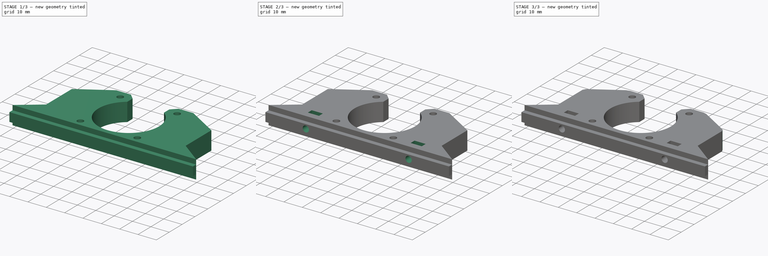
[diagram: build sequence overview — one tinted view per stage of 3, left to right]
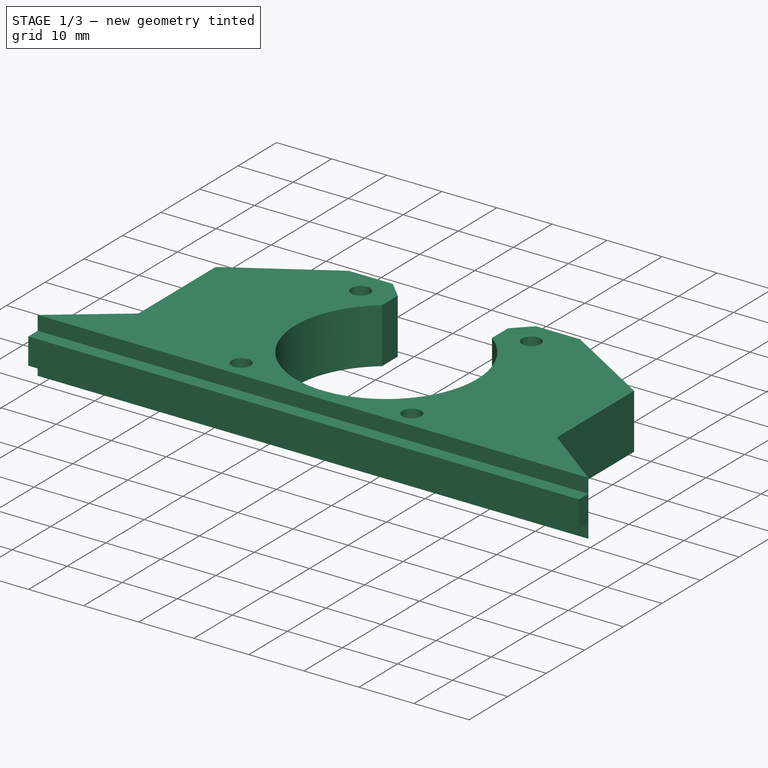
[diagram: stage 1 of 3 — iso view after this stage's code; geometry added in this stage tinted green]
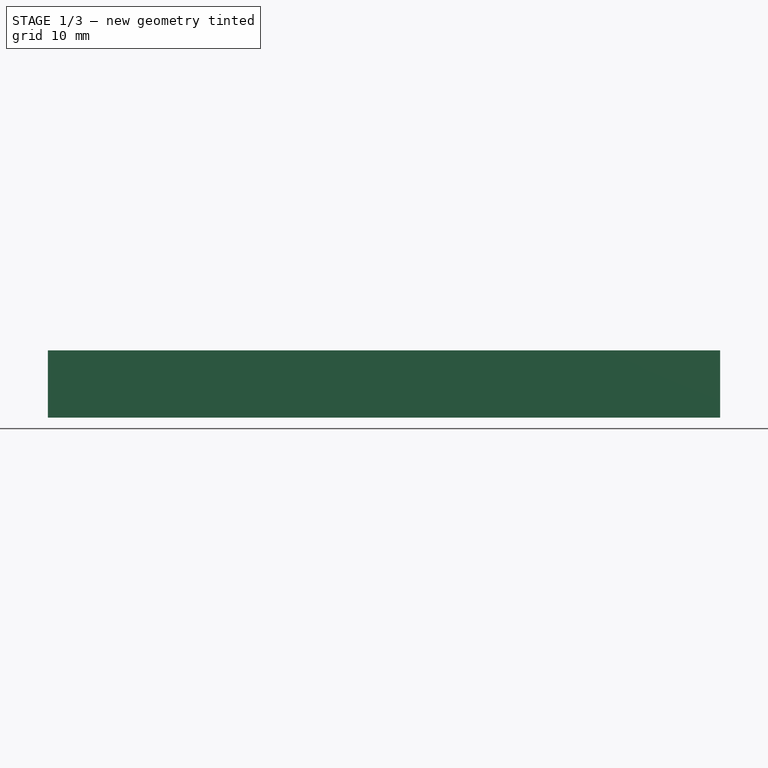
[diagram: stage 1 of 3 — front view after this stage's code; geometry added in this stage tinted green]
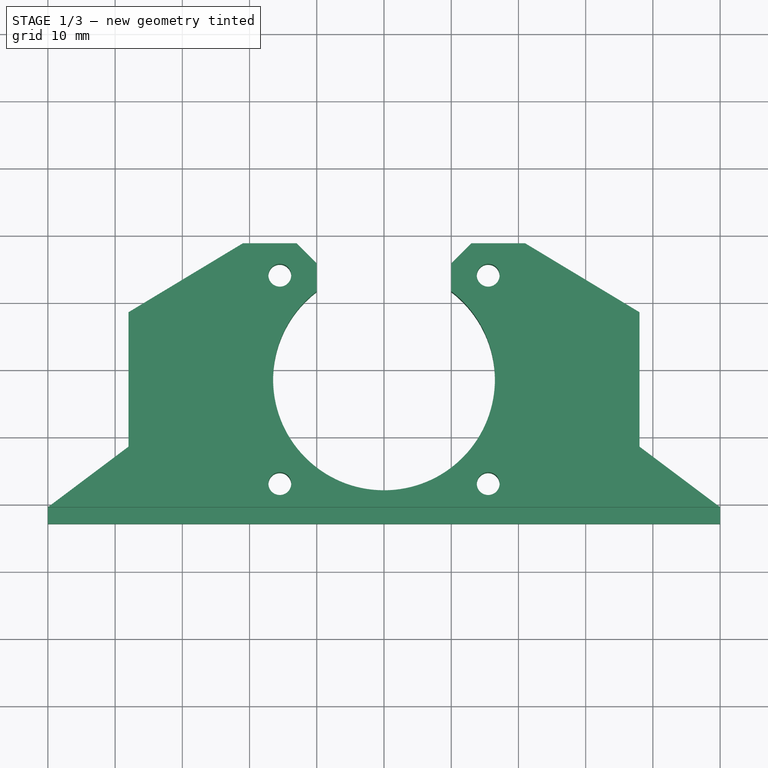
[diagram: stage 1 of 3 — top view after this stage's code; geometry added in this stage tinted green]
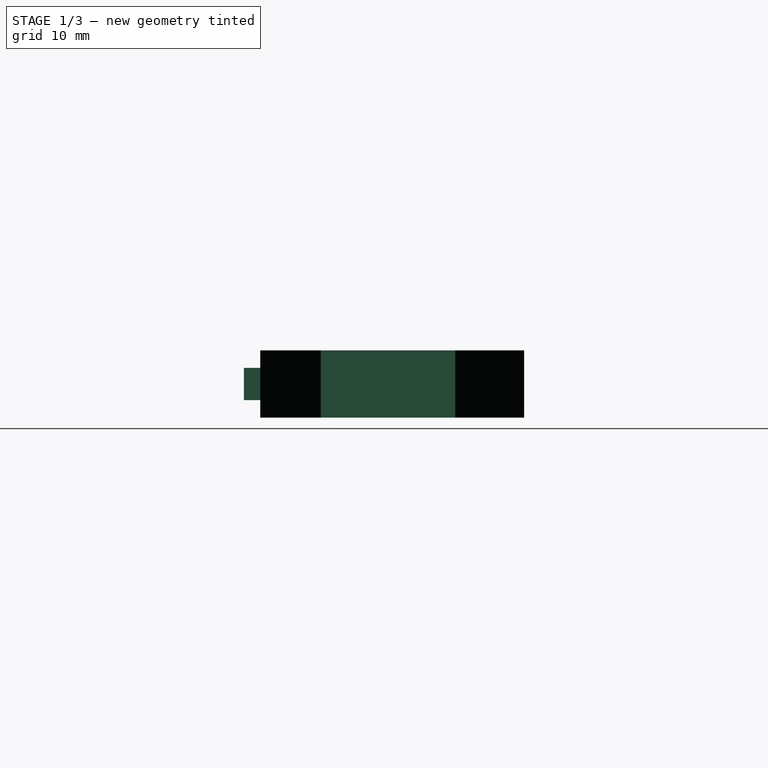
[diagram: stage 1 of 3 — right view after this stage's code; geometry added in this stage tinted green]
FCSTD DOCUMENT  (FreeCAD 0.18R)
Label: x-carriage-top-mount
License: All rights reserved
LicenseURL: http://en.wikipedia.org/wiki/All_rights_reserved
objects: Sketcher::SketchObject×5, PartDesign::Pocket×3, PartDesign::Pad×2, PartDesign::Fillet×1, PartDesign::Chamfer×1, PartDesign::Body×1
note: 18 computed .brp shape members not serialized (recipe doc carries the construction recipe); baked Part::Feature solids carry a one-line shape summary decoded from their .brp

FEATURE [Sketcher::SketchObject] Sketch020
  MapMode = 5
  Support = -> [XY_Plane001]
  sketch-geometry (7):
    g0: Circle CenterX=25 CenterY=28.5 CenterZ=0 NormalX=0 NormalY=0 NormalZ=1 AngleXU=0 Radius=4.05
    g1: Circle CenterX=75 CenterY=28.5 CenterZ=0 NormalX=0 NormalY=0 NormalZ=1 AngleXU=0 Radius=4.05
    g2: Circle CenterX=34.5 CenterY=44 CenterZ=0 NormalX=0 NormalY=0 NormalZ=1 AngleXU=0 Radius=3
    g3: Circle CenterX=65.5 CenterY=44 CenterZ=0 NormalX=0 NormalY=0 NormalZ=1 AngleXU=0 Radius=3
    g4: Circle CenterX=65.5 CenterY=13 CenterZ=0 NormalX=0 NormalY=0 NormalZ=1 AngleXU=0 Radius=3
    g5: Circle CenterX=34.5 CenterY=13 CenterZ=0 NormalX=0 NormalY=0 NormalZ=1 AngleXU=0 Radius=3
    g6: GeomPoint X=50 Y=28.5 Z=0
  constraints (20):
    c: DistanceY(g0,g1) = 0
    c: Diameter(g0) = 8.1
    c: Equal(g1,g0)
    c: DistanceY(g-1,g0) = 28.5
    c: DistanceX(g-1,g0) = 25
    c: DistanceX(g0,g1) = 50
    c: Diameter(g2) = 6
    c: Equal(g3,g2)
    c: Equal(g4,g2)
    c: Equal(g5,g2)
    c: DistanceX(g5,g2) = 0
    c: DistanceX(g4,g3) = 0
    c: DistanceY(g3,g2) = 0
    c: DistanceY(g5,g4) = 0
    c: DistanceY(g6,g0) = 0
    c: DistanceX(g0,g6) = 25
    c: DistanceX(g2,g6) = 15.5
    c: DistanceY(g6,g2) = 15.5
    c: DistanceX(g2,g3) = 31
    c: DistanceY(g4,g3) = 31
FEATURE [Sketcher::SketchObject] Sketch014
  AttachmentOffset = pos=(0,0,-13) rot=(0,0,1;0rad)
  MapMode = 5
  Placement = pos=(0,13,2.9e-15) rot=(1,0,0;1.5708rad)
  Support = -> [XZ_Plane001]
  sketch-geometry (16):
    g0: LineSegment StartX=25.0311 StartY=3.25 StartZ=0 EndX=25.0311 EndY=6.75 EndZ=0
    g1: LineSegment StartX=18.9689 StartY=6.75 StartZ=0 EndX=18.9689 EndY=3.25 EndZ=0
    g2: LineSegment StartX=18.9689 StartY=3.25 StartZ=0 EndX=22 EndY=1.5 EndZ=0
    g3: LineSegment StartX=22 StartY=1.5 StartZ=0 EndX=25.0311 EndY=3.25 EndZ=0
    g4: Circle [constr] CenterX=22 CenterY=5 CenterZ=0 NormalX=0 NormalY=0 NormalZ=1 AngleXU=0 Radius=3.5
    g5: LineSegment StartX=81.0311 StartY=3.25 StartZ=0 EndX=81.0311 EndY=6.75 EndZ=0
    g6: LineSegment StartX=74.9689 StartY=6.75 StartZ=0 EndX=74.9689 EndY=3.25 EndZ=0
    g7: LineSegment StartX=74.9689 StartY=3.25 StartZ=0 EndX=78 EndY=1.5 EndZ=0
    g8: LineSegment StartX=78 StartY=1.5 StartZ=0 EndX=81.0311 EndY=3.25 EndZ=0
    g9: Circle [constr] CenterX=78 CenterY=5 CenterZ=0 NormalX=0 NormalY=0 NormalZ=1 AngleXU=0 Radius=3.5
    g10: LineSegment StartX=18.9689 StartY=6.75 StartZ=0 EndX=18.9689 EndY=10.75 EndZ=0
    g11: LineSegment StartX=25.0311 StartY=6.75 StartZ=0 EndX=25.0311 EndY=10.75 EndZ=0
    g12: LineSegment StartX=18.9689 StartY=10.75 StartZ=0 EndX=25.0311 EndY=10.75 EndZ=0
    g13: LineSegment StartX=74.9689 StartY=6.75 StartZ=0 EndX=74.9689 EndY=10.75 EndZ=0
    g14: LineSegment StartX=81.0311 StartY=6.75 StartZ=0 EndX=81.0311 EndY=10.75 EndZ=0
    g15: LineSegment StartX=74.9689 StartY=10.75 StartZ=0 EndX=81.0311 EndY=10.75 EndZ=0
  constraints (48):
    c: Coincident(g1,g2)
    c: Coincident(g2,g3)
    c: Coincident(g3,g0)
    c: Equal(g0,g1)
    c: Equal(g0,g2)
    c: Equal(g0,g3)
    c: PointOnObject(g0,g4)
    c: PointOnObject(g1,g4)
    c: PointOnObject(g1,g4)
    c: PointOnObject(g2,g4)
    c: PointOnObject(g3,g4)
    c: Coincident(g6,g7)
    c: Coincident(g7,g8)
    c: Coincident(g8,g5)
    c: Equal(g5,g6)
    c: Equal(g5,g7)
    c: Equal(g5,g8)
    c: PointOnObject(g5,g9)
    c: PointOnObject(g6,g9)
    c: PointOnObject(g6,g9)
    c: PointOnObject(g7,g9)
    c: PointOnObject(g8,g9)
    c: DistanceY(g9,g4) = 0
    c: DistanceX(g4,g9) = 56
    c: DistanceY(g-1,g4) = 5
    c: DistanceX(g-1,g4) = 22
    c: Vertical(g1)
    c: Vertical(g10)
    c: Coincident(g11,g0)
    c: Vertical(g11)
    c: Coincident(g12,g10)
    c: Coincident(g12,g11)
    c: Horizontal(g12)
    c: DistanceY(g10,g10) = 4
    c: Coincident(g1,g10)
    c: Vertical(g0)
    c: DistanceY(g1,g1) = 3.5
    c: Vertical(g6)
    c: Vertical(g13)
    c: Coincident(g14,g5)
    c: Vertical(g14)
    c: Coincident(g15,g13)
    c: Coincident(g15,g14)
    c: Horizontal(g15)
    c: DistanceY(g11,g13) = 0
    c: Coincident(g6,g13)
    c: DistanceY(g6,g6) = 3.5
    c: Vertical(g5)
FEATURE [Sketcher::SketchObject] Sketch013
  MapMode = 5
  Placement = pos=(0,0,0) rot=(1,0,0;1.5708rad)
  Support = -> [XZ_Plane001]
  sketch-geometry (2):
    g0: Circle CenterX=22 CenterY=5 CenterZ=0 NormalX=0 NormalY=0 NormalZ=1 AngleXU=0 Radius=1.7
    g1: Circle CenterX=78 CenterY=5 CenterZ=0 NormalX=0 NormalY=0 NormalZ=1 AngleXU=0 Radius=1.7
  constraints (6):
    c: DistanceY(g0,g1) = 0
    c: Diameter(g0) = 3.4
    c: Equal(g1,g0)
    c: DistanceY(g-1,g0) = 5
    c: DistanceX(g-1,g0) = 22
    c: DistanceX(g0,g1) = 56
FEATURE [Sketcher::SketchObject] Sketch021
  MapMode = 5
  Placement = pos=(0,0,0) rot=(0.57735,0.57735,0.57735;2.0944rad)
  Support = -> [YZ_Plane001]
  sketch-geometry (4):
    g0: LineSegment StartX=7.05 StartY=7.4 StartZ=0 EndX=9.5 EndY=7.4 EndZ=0
    g1: LineSegment StartX=9.5 StartY=7.4 StartZ=0 EndX=9.5 EndY=2.6 EndZ=0
    g2: LineSegment StartX=9.5 StartY=2.6 StartZ=0 EndX=7.05 EndY=2.6 EndZ=0
    g3: LineSegment StartX=7.05 StartY=2.6 StartZ=0 EndX=7.05 EndY=7.4 EndZ=0
  constraints (12):
    c: Coincident(g0,g1)
    c: Coincident(g1,g2)
    c: Coincident(g2,g3)
    c: Coincident(g3,g0)
    c: Horizontal(g0)
    c: Horizontal(g2)
    c: Vertical(g1)
    c: Vertical(g3)
    c: DistanceX(g2,g2) = 2.45
    c: DistanceX(g-1,g1) = 9.5
    c: DistanceY(g1,g1) = 4.8
    c: DistanceY(g-1,g2) = 2.6
FEATURE [Sketcher::SketchObject] Sketch012
  AttachmentOffset = pos=(0,0,-64) rot=(0,0,1;0rad)
  MapMode = 5
  sketch-geometry (20):
    g0: LineSegment StartX=29 StartY=48.75 StartZ=0 EndX=12 EndY=38.5 EndZ=0
    g1: LineSegment StartX=12 StartY=38.5 StartZ=0 EndX=12 EndY=18.5 EndZ=0
    g2: GeomPoint X=22 Y=28.5 Z=0
    g3: GeomPoint X=50 Y=28.5 Z=0
    g4: LineSegment StartX=12 StartY=18.5 StartZ=0 EndX=0 EndY=9.49 EndZ=0
    g5: LineSegment StartX=0 StartY=9.49 StartZ=0 EndX=100 EndY=9.49 EndZ=0
    g6: Circle CenterX=34.5 CenterY=44 CenterZ=0 NormalX=0 NormalY=0 NormalZ=1 AngleXU=0 Radius=1.7
    g7: Circle CenterX=34.5 CenterY=13 CenterZ=0 NormalX=0 NormalY=0 NormalZ=1 AngleXU=0 Radius=1.7
    g8: LineSegment StartX=29 StartY=48.75 StartZ=0 EndX=37 EndY=48.75 EndZ=0
    g9: LineSegment StartX=40 StartY=45.75 StartZ=0 EndX=40 EndY=41.6244 EndZ=0
    g10: LineSegment StartX=37 StartY=48.75 StartZ=0 EndX=40 EndY=45.75 EndZ=0
    g11: LineSegment StartX=88 StartY=18.5 StartZ=0 EndX=100 EndY=9.49 EndZ=0
    g12: LineSegment StartX=88 StartY=18.5 StartZ=0 EndX=88 EndY=38.5 EndZ=0
    g13: LineSegment StartX=88 StartY=38.5 StartZ=0 EndX=71 EndY=48.75 EndZ=0
    g14: LineSegment StartX=63 StartY=48.75 StartZ=0 EndX=71 EndY=48.75 EndZ=0
    g15: LineSegment StartX=63 StartY=48.75 StartZ=0 EndX=60 EndY=45.75 EndZ=0
    g16: LineSegment StartX=60 StartY=45.75 StartZ=0 EndX=60 EndY=41.6244 EndZ=0
    g17: Circle CenterX=65.5 CenterY=44 CenterZ=0 NormalX=0 NormalY=0 NormalZ=1 AngleXU=0 Radius=1.7
    g18: Circle CenterX=65.5 CenterY=13 CenterZ=0 NormalX=0 NormalY=0 NormalZ=1 AngleXU=0 Radius=1.7
    g19: ArcOfCircle CenterX=50 CenterY=28.5 CenterZ=0 NormalX=0 NormalY=0 NormalZ=1 AngleXU=0 Radius=16.5 StartAngle=2.22189 EndAngle=7.20288
  constraints (59):
    c: Coincident(g1,g0)
    c: Vertical(g1)
    c: DistanceY(g-1,g2) = 28.5
    c: DistanceY(g1,g1) = 20
    c: DistanceX(g-1,g2) = 22
    c: DistanceY(g2,g0) = 10
    c: DistanceX(g0,g2) = 10
    c: DistanceX(g2,g0) = 7
    c: DistanceY(g2,g3) = 0
    c: DistanceX(g2,g3) = 28
    c: Coincident(g4,g1)
    c: DistanceY(g-1,g4) = 9.49
    c: PointOnObject(g4,g-2)
    c: Coincident(g5,g4)
    c: Horizontal(g5)
    c: Diameter(g6) = 3.4
    c: Equal(g6,g7)
    c: DistanceX(g6,g3) = 15.5
    c: DistanceY(g3,g6) = 15.5
    c: DistanceX(g7,g6) = 0
    c: Coincident(g8,g0)
    c: Horizontal(g8)
    c: Vertical(g9)
    c: Angle(g10,g9) = 2.35619
    c: Coincident(g8,g10)
    c: Coincident(g9,g10)
    c: DistanceY(g6,g0) = 4.75
    c: DistanceY(g7,g3) = 15.5
    c: DistanceY(g11,g1) = 0
    c: Coincident(g12,g11)
    c: Vertical(g12)
    c: Coincident(g13,g12)
    c: Coincident(g14,g13)
    c: Horizontal(g14)
    c: DistanceX(g1,g11) = 76
    c: DistanceY(g14,g8) = 0
    c: DistanceY(g0,g12) = 0
    c: Coincident(g15,g14)
    c: DistanceX(g9,g15) = 20
    c: DistanceY(g15,g9) = 0
    c: Coincident(g16,g15)
    c: Vertical(g16)
    c: Equal(g17,g6)
    c: DistanceX(g6,g17) = 31
    c: DistanceX(g14,g17) = 2.5
    c: Equal(g14,g8)
    c: Equal(g18,g7)
    c: DistanceX(g7,g18) = 31
    c: DistanceY(g7,g18) = 0
    c: DistanceX(g6,g8) = 2.5
    c: Coincident(g5,g11)
    c: DistanceX(g4,g5) = 100
    c: DistanceY(g17,g6) = 0
    c: DistanceX(g6,g19) = 15.5
    c: DistanceY(g19,g6) = 15.5
    c: Diameter(g19) = 33
    c: Coincident(g19,g9)
    c: Coincident(g19,g16)
    c: DistanceY(g16,g9) = 0
FEATURE [PartDesign::Pad] Pad001
  Length = 10
  Length2 = 100
  Profile = -> Sketch012
  Type = 0
FEATURE [PartDesign::Pad] Pad002
  BaseFeature = -> Pad001
  Length = 100
  Length2 = 100
  Profile = -> Sketch021
  Type = 0
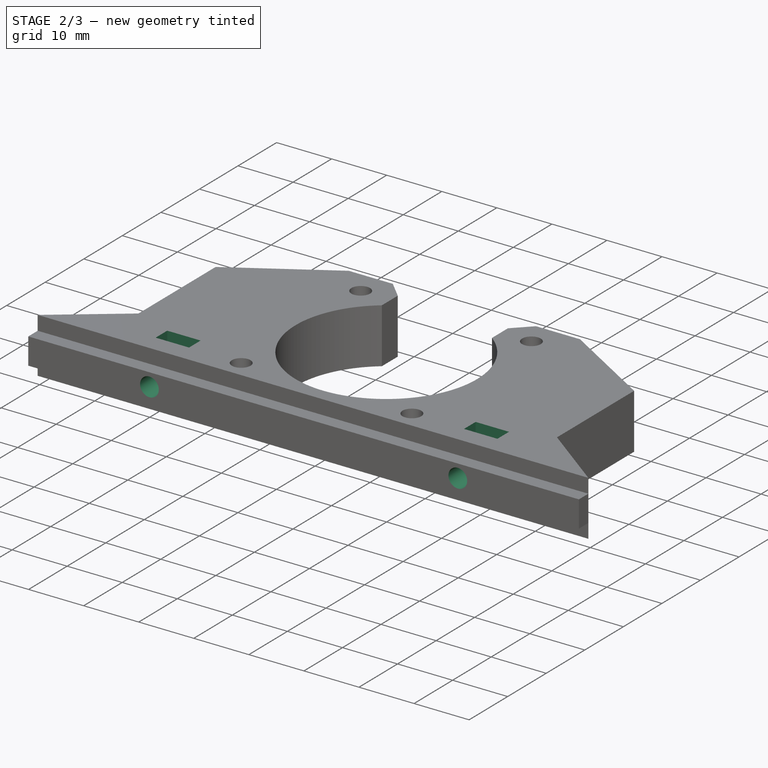
[diagram: stage 2 of 3 — iso view after this stage's code; geometry added in this stage tinted green]
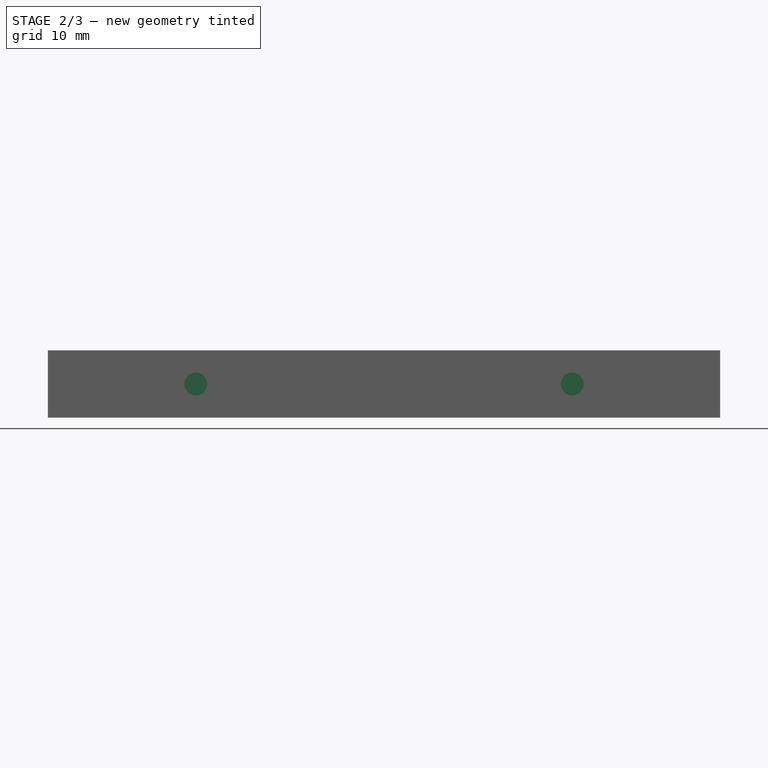
[diagram: stage 2 of 3 — front view after this stage's code; geometry added in this stage tinted green]
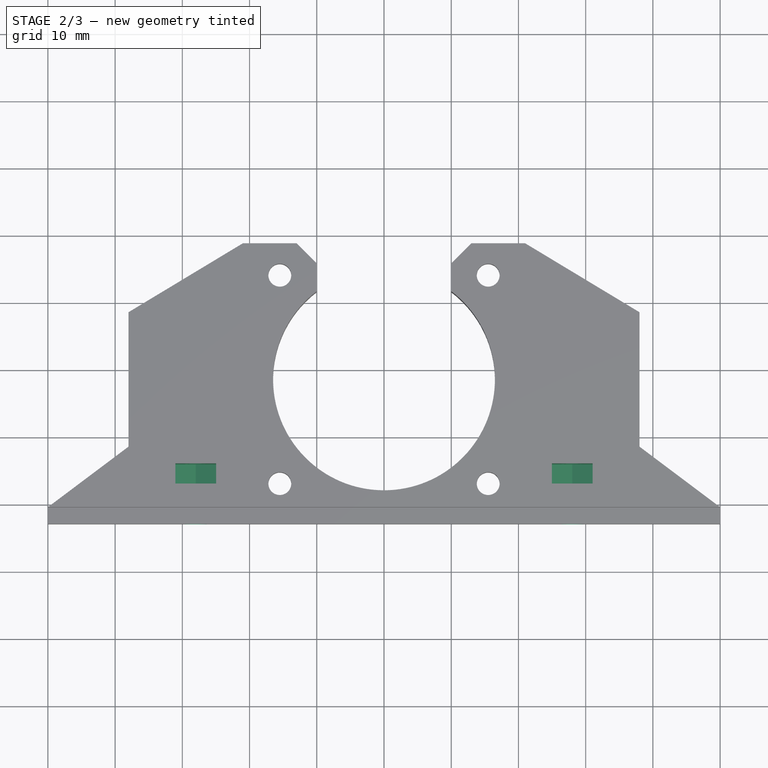
[diagram: stage 2 of 3 — top view after this stage's code; geometry added in this stage tinted green]
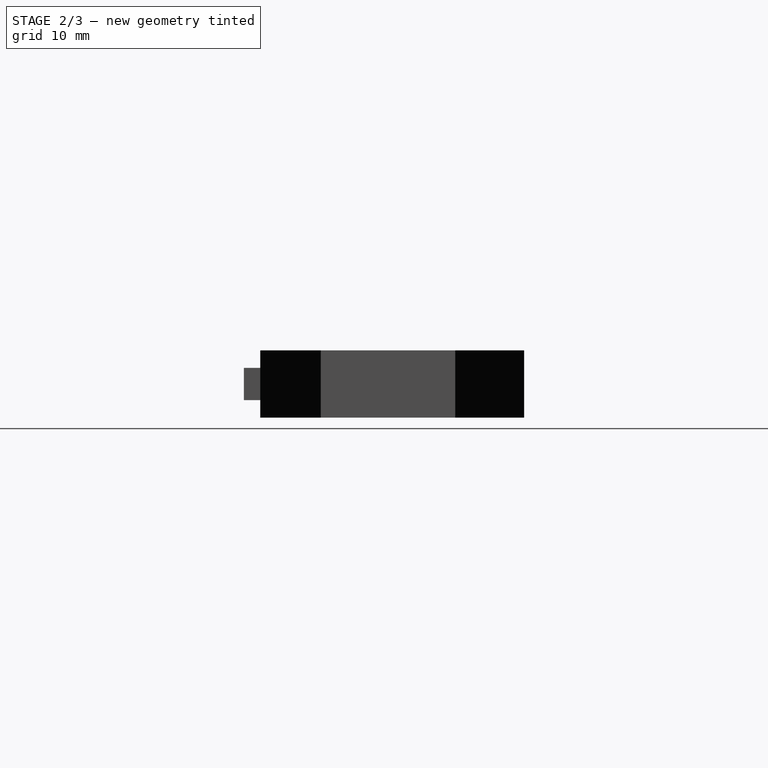
[diagram: stage 2 of 3 — right view after this stage's code; geometry added in this stage tinted green]
FEATURE [PartDesign::Pocket] Pocket014
  BaseFeature = -> Pad002
  Length = 5
  Length2 = 100
  Profile = -> Sketch020
  Reversed = true
  Type = 0
FEATURE [PartDesign::Pocket] Pocket016
  BaseFeature = -> Pocket014
  Length = 22
  Length2 = 100
  Profile = -> Sketch013
  Type = 0
FEATURE [PartDesign::Pocket] Pocket015
  BaseFeature = -> Pocket016
  Length = 3
  Length2 = 100
  Profile = -> Sketch014
  Type = 0
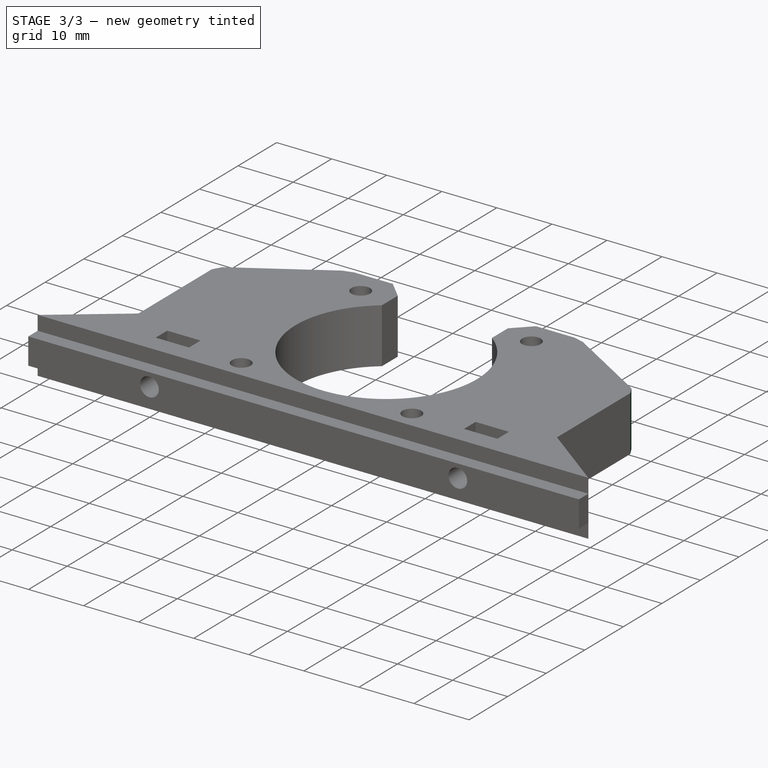
[diagram: stage 3 of 3 — iso view after this stage's code; geometry added in this stage tinted green]
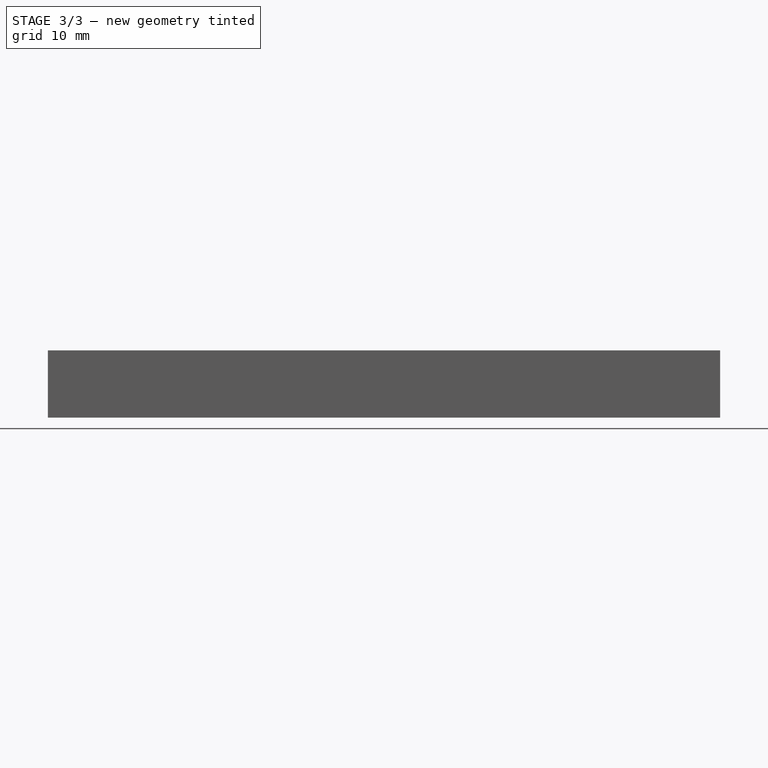
[diagram: stage 3 of 3 — front view after this stage's code; geometry added in this stage tinted green]
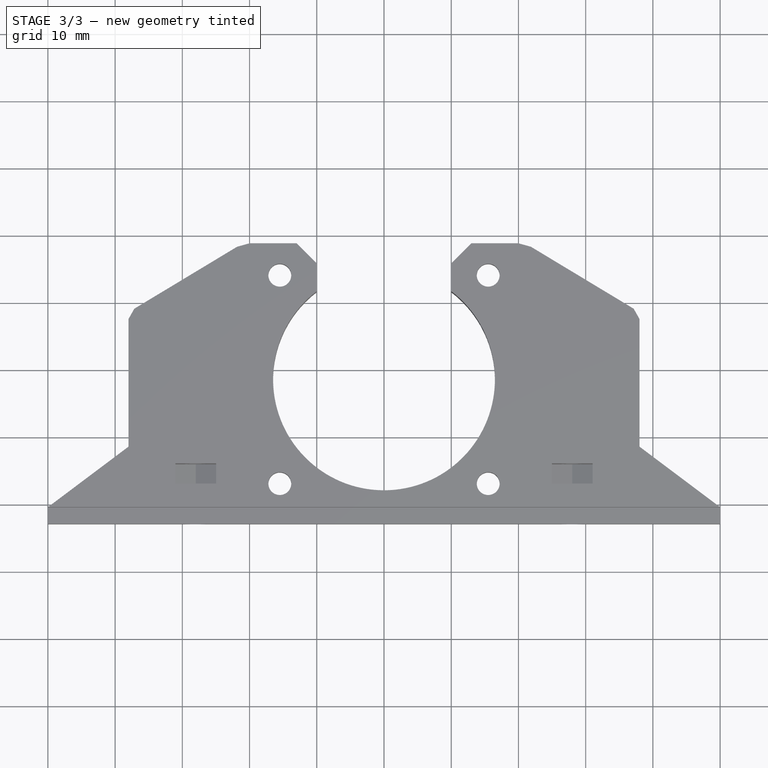
[diagram: stage 3 of 3 — top view after this stage's code; geometry added in this stage tinted green]
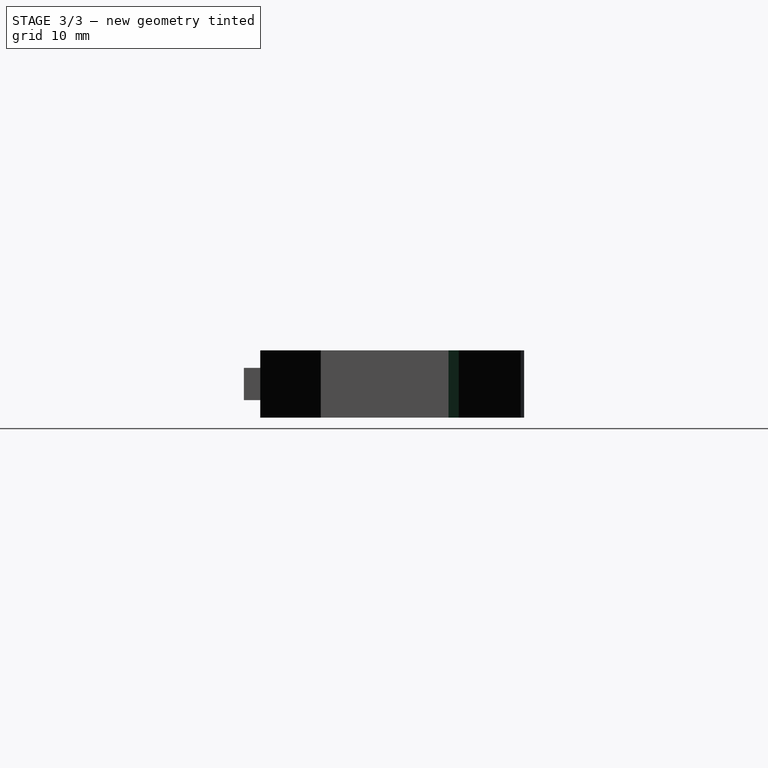
[diagram: stage 3 of 3 — right view after this stage's code; geometry added in this stage tinted green]
FEATURE [PartDesign::Fillet] Fillet
  Base = -> Pocket015 [Edge22,Edge24,Edge25,Edge23]
  BaseFeature = -> Pocket015
  Radius = 0.5
FEATURE [PartDesign::Chamfer] Chamfer
  Base = -> Fillet [Edge54,Edge56,Edge23,Edge26]
  BaseFeature = -> Fillet
  Size = 1
FEATURE [PartDesign::Body] Body001  label="x-carriage-top-mount"
  Group = -> [Sketch012,Pad001,Pad002,Sketch020,Pocket014,Sketch013,Pocket016,Sketch014,Pocket015,Sketch021,Fillet,Chamfer]
  Origin = -> Origin001
  Placement = pos=(240,54,1.2e-14) rot=(0,0.707107,0.707107;3.14159rad)
  Tip = -> Chamfer
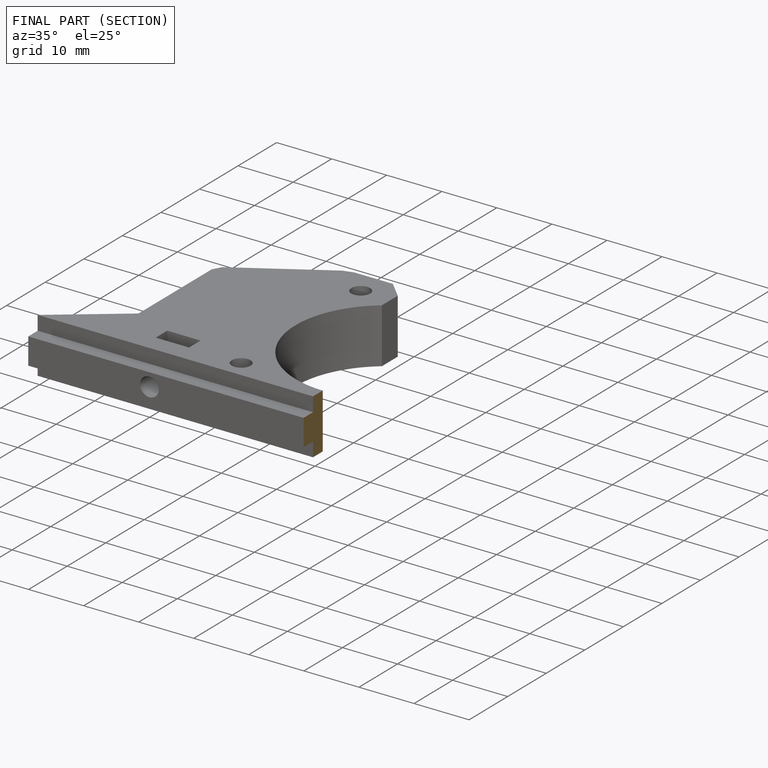
[diagram: finished part — half-section view (interior)]
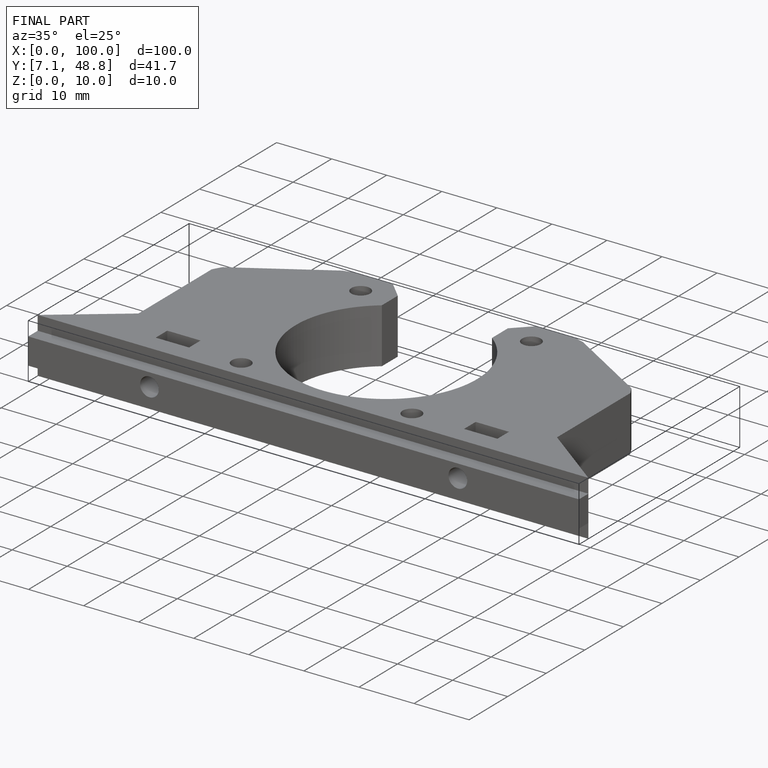
[diagram: finished part — iso view with bounding-box wireframe]
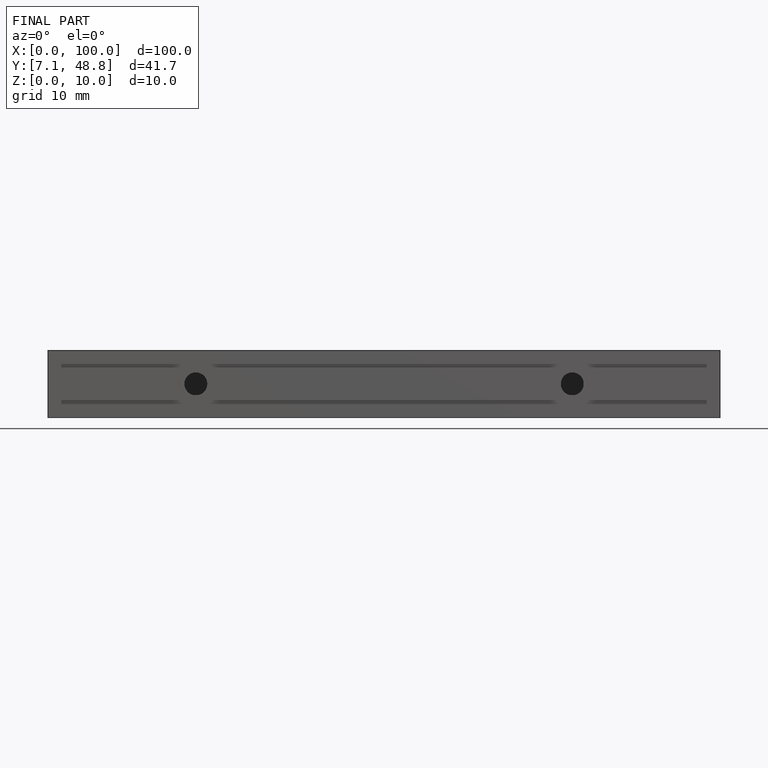
[diagram: finished part — front view with bounding-box wireframe]
